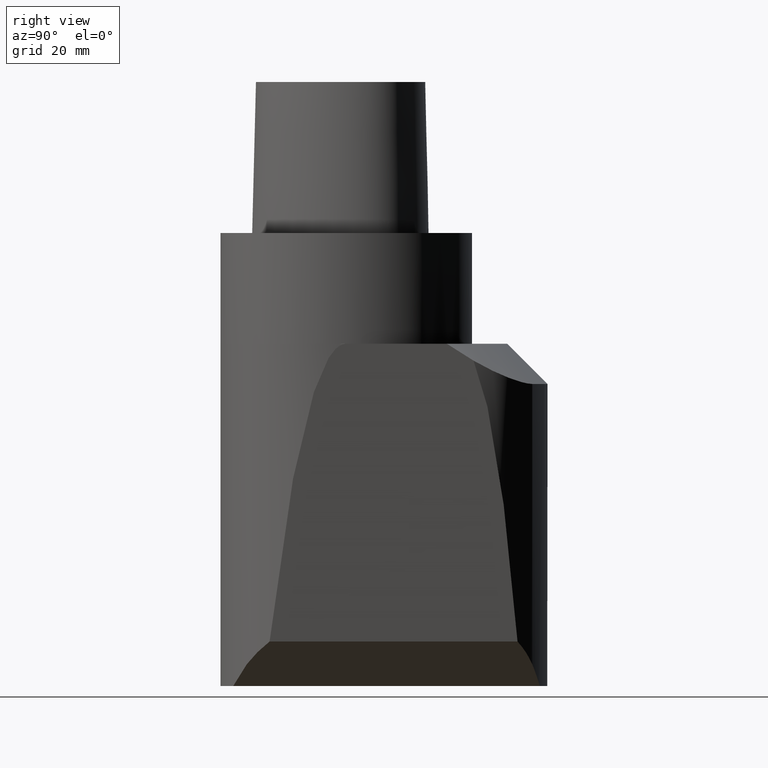
[diagram: clean part render]
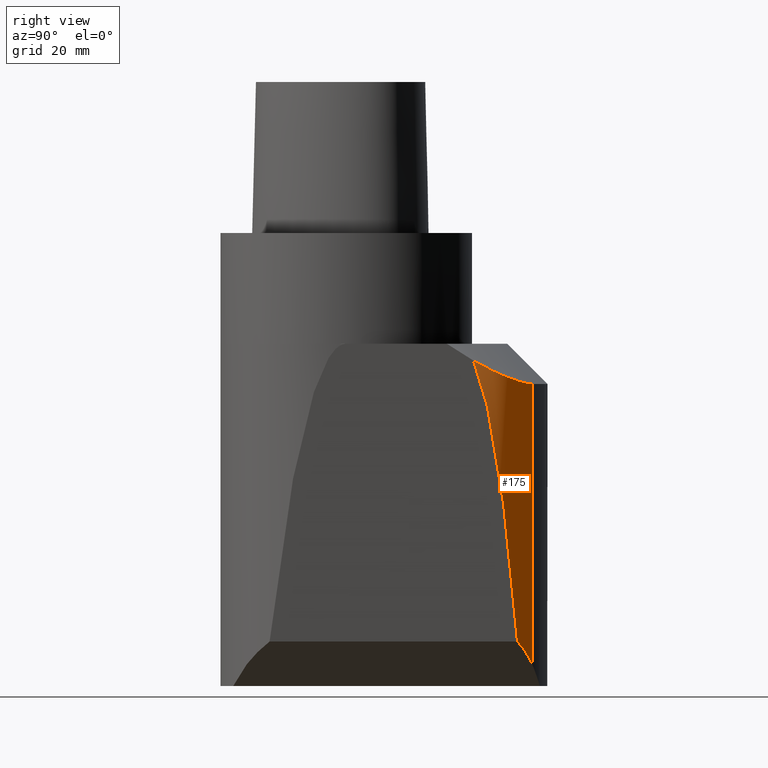
[diagram: same view with one face highlighted and labeled with its STEP entity id]
A machine part, right view. The second image highlights one B-rep face of the part: STEP entity #175.
In plain terms, the highlighted cylindrical surface (partial cylindrical patch) has radius 16 mm, axis along (-0, -0, 1).
Its self-contained STEP definition (entity closure, byte-faithful):
#96=EDGE_CURVE('240[2]',#267,#268,#269,.T.);
#139=EDGE_CURVE('240[2]',#271,#260,#332,.T.);
#175=ADVANCED_FACE('240[2]',(#378),#379,.T.);
#190=EDGE_CURVE('240[2]',#297,#268,#396,.F.);
#198=EDGE_CURVE('240[2]',#271,#267,#406,.T.);
#226=EDGE_CURVE('240[2]',#260,#297,#441,.T.);
#260=VERTEX_POINT('',#470);
#267=VERTEX_POINT('',#483);
#268=VERTEX_POINT('',#484);
#269=B_SPLINE_CURVE_WITH_KNOTS('',3,(#485,#486,#487,#488,#489,#490,#491,#492,#493,#494,#495,#496,#497,#498,#499,#500,#501,#502),.UNSPECIFIED.,.F.,.F.,(4,3,3,3,3,2,4),(7.4610371083688,9.74245633401,12.98994177868,15.625256499881,17.4879813303238,22.7440683713327,23.1527132027564),.UNSPECIFIED.);
#271=VERTEX_POINT('',#505);
#297=VERTEX_POINT('',#559);
#332=ELLIPSE('',#616,183.579411930711,16.0);
#378=FACE_OUTER_BOUND('',#1203,.T.);
#379=CYLINDRICAL_SURFACE('',#1204,16.0);
#396=LINE('',#1278,#1279);
#406=LINE('',#1294,#1295);
#441=ELLIPSE('',#1345,22.6274169979687,16.0);
#470=CARTESIAN_POINT('',(19.8226529999563,34.0331936345335,-81.177347158775));
#483=CARTESIAN_POINT('',(24.7022320764097,25.3068946513365,-25.36437736552));
#484=CARTESIAN_POINT('',(15.2871730443481,36.9635271627569,-29.9999999999993));
#485=CARTESIAN_POINT('',(24.7022320764097,25.3068946513365,-25.36437736552));
#486=CARTESIAN_POINT('',(24.5675224778467,25.9994617537622,-25.7658857757116));
#487=CARTESIAN_POINT('',(24.3853392511305,26.6900616343009,-26.1472100658429));
#488=CARTESIAN_POINT('',(24.1569628271243,27.3669572021449,-26.5035505058805));
#489=CARTESIAN_POINT('',(23.8318804816568,28.3304839750541,-27.0107831877845));
#490=CARTESIAN_POINT('',(23.4124036950952,29.2661572440479,-27.4672102775464));
#491=CARTESIAN_POINT('',(22.9157536404162,30.1422947407208,-27.8640950921189));
#492=CARTESIAN_POINT('',(22.5127251364612,30.8532749997909,-28.1861647094533));
#493=CARTESIAN_POINT('',(22.0325883463075,31.5711248067226,-28.4897294259004));
#494=CARTESIAN_POINT('',(21.4788803722165,32.2616177166729,-28.7576351154329));
#495=CARTESIAN_POINT('',(21.0875018458281,32.7496802157216,-28.9469994354113));
#496=CARTESIAN_POINT('',(20.6595695538381,33.2242177810881,-29.118722479627));
#497=CARTESIAN_POINT('',(20.1998899959847,33.6750557265264,-29.2688799691926));
#498=CARTESIAN_POINT('',(18.9028032080905,34.9471939639544,-29.692582290715));
#499=CARTESIAN_POINT('',(17.3784175904185,36.0078292526934,-29.9386830718968));
#500=CARTESIAN_POINT('',(15.5526095716002,36.8478925389709,-29.9953728017106));
#501=CARTESIAN_POINT('',(15.4202132381684,36.9066395170841,-29.9982760107176));
#502=CARTESIAN_POINT('',(15.2871730443481,36.9635271627569,-29.9999999999993));
#505=CARTESIAN_POINT('',(24.7022320764097,25.3068946513365,-25.4035030994543));
#559=CARTESIAN_POINT('',(15.2871730444186,36.9635271627267,-85.7128271143125));
#616=AXIS2_PLACEMENT_3D('',#1417,#1418,#1419);
#1203=EDGE_LOOP('',(#1471,#1472,#1473,#1474,#1475));
#1204=AXIS2_PLACEMENT_3D('',#1476,#1477,#1478);
#1278=CARTESIAN_POINT('',(15.2871730443324,36.9635271627636,-59.9999999999993));
#1279=VECTOR('',#1499,1.0);
#1294=CARTESIAN_POINT('',(24.7022320764097,25.3068946513365,-263.139999954391));
#1295=VECTOR('',#1507,1.0);
#1345=AXIS2_PLACEMENT_3D('',#1565,#1566,#1567);
#1417=CARTESIAN_POINT('',(8.99657185664934,22.2520236129044,-204.920020860706));
#1418=DIRECTION('',(-0.996194698091745,-1.06735001383234E-017,0.0871557427476616));
#1419=DIRECTION('',(-0.0871557427476616,1.32672164972885E-016,-0.996194698091745));
#1471=ORIENTED_EDGE('',*,*,#96,.F.);
#1472=ORIENTED_EDGE('',*,*,#198,.F.);
#1473=ORIENTED_EDGE('',*,*,#139,.T.);
#1474=ORIENTED_EDGE('',*,*,#226,.T.);
#1475=ORIENTED_EDGE('',*,*,#190,.T.);
#1476=CARTESIAN_POINT('',(8.99657185664934,22.2520236129044,-263.139999954391));
#1477=DIRECTION('',(-6.12323399573676E-017,-1.22464679914735E-016,1.0));
#1478=DIRECTION('',(-1.0,1.22464679914735E-016,-6.12323399573676E-017));
#1499=DIRECTION('',(6.12323399573677E-017,-3.61987396425892E-014,-1.0));
#1507=DIRECTION('',(-6.12323399573677E-017,-1.22464679914735E-016,1.0));
#1565=CARTESIAN_POINT('',(8.99657185664933,22.2520236129044,-92.0034283020812));
#1566=DIRECTION('',(-0.707106781186523,-8.65956056235523E-017,0.707106781186572));
#1567=DIRECTION('',(-0.707106781186572,1.73191211247098E-016,-0.707106781186523));